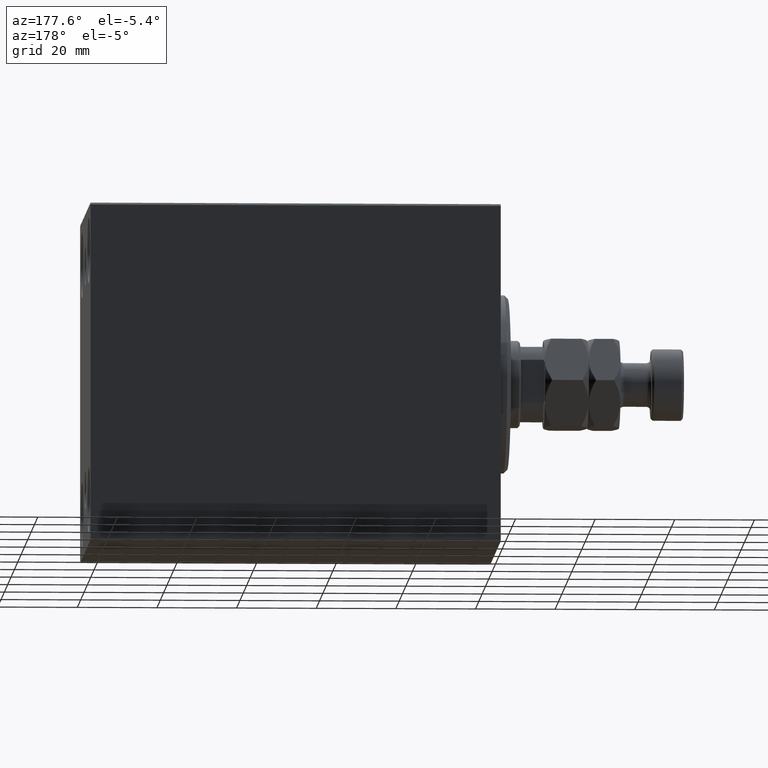
[diagram: clean part render]
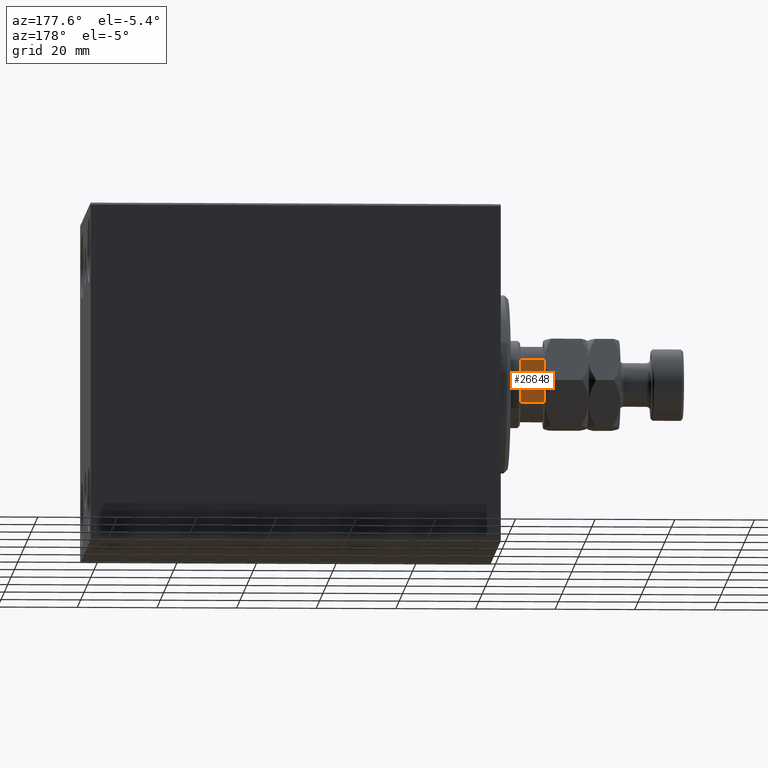
[diagram: same view with one face highlighted and labeled with its STEP entity id]
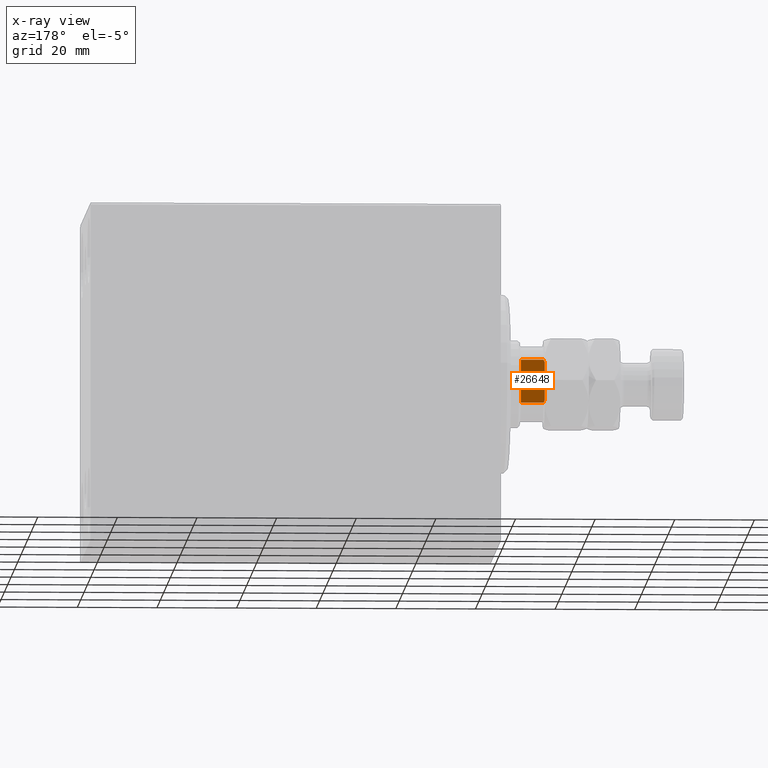
[diagram: x-ray of the same camera — body ghosted, the highlighted face saturated]
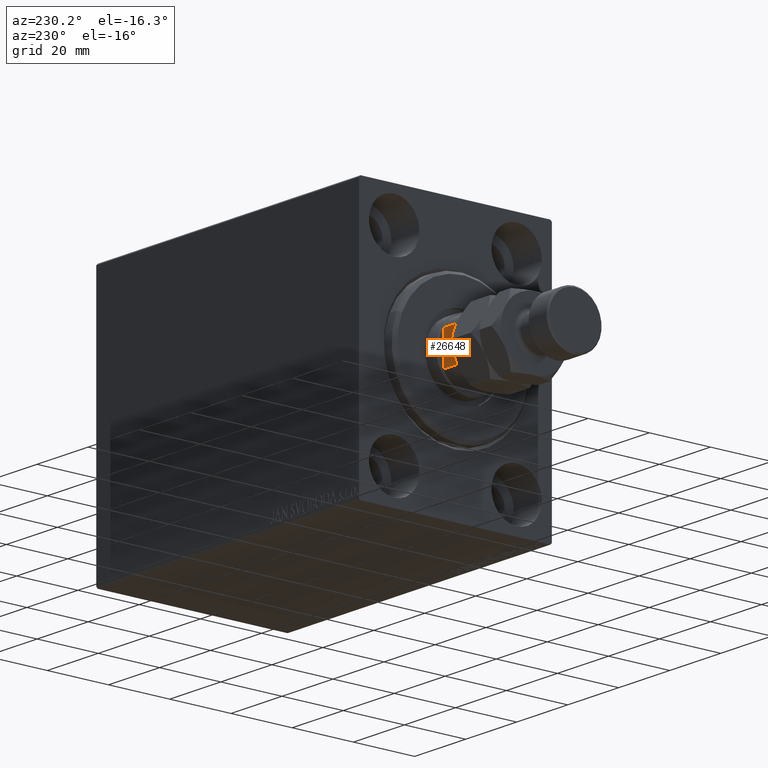
[diagram: same view with one face highlighted and labeled with its STEP entity id]
A machine part, auxiliary view. The second image highlights one B-rep face of the part: STEP entity #26648.
The next image is the same camera in x-ray: the body ghosted, the highlighted face saturated — about 0% of this face is hidden behind the body in this view.
A second angle (auxiliary view) of the same face is appended — the face is thin or edge-on in the first view.
In plain terms, the highlighted planar face has unit normal (0, -1, 0).
Its self-contained STEP definition (entity closure, byte-faithful):
#956 = EDGE_LOOP ( 'NONE', ( #14218, #34635, #30588, #30166, #45015, #34044 ) ) ;
#1369 = LINE ( 'NONE', #13273, #37239 ) ;
#1640 = CARTESIAN_POINT ( 'NONE',  ( 5.408326913195989682, 8.999999999999998224, 102.6999999999999886 ) ) ;
#2187 = VECTOR ( 'NONE', #26177, 1000.000000000000000 ) ;
#3000 = DIRECTION ( 'NONE',  ( -0.000000000000000000, -0.000000000000000000, 1.000000000000000000 ) ) ;
#3223 = LINE ( 'NONE', #34450, #44321 ) ;
#3697 = CARTESIAN_POINT ( 'NONE',  ( -5.004607318780315062, 8.999999999999998224, 102.9037142029269347 ) ) ;
#3930 = VERTEX_POINT ( 'NONE', #24798 ) ;
#5064 = CARTESIAN_POINT ( 'NONE',  ( 5.408326913195989682, 8.999999999999998224, -0.001000000000001000089 ) ) ;
#6027 = DIRECTION ( 'NONE',  ( 0.000000000000000000, -0.000000000000000000, -1.000000000000000000 ) ) ;
#6639 = CARTESIAN_POINT ( 'NONE',  ( -5.408326913195991459, 8.999999999999998224, 97.00000000000004263 ) ) ;
#6977 = VERTEX_POINT ( 'NONE', #24810 ) ;
#8553 = CARTESIAN_POINT ( 'NONE',  ( 5.408326913195989682, 8.999999999999998224, 102.6999999999999886 ) ) ;
#12596 = DIRECTION ( 'NONE',  ( -1.000000000000000000, -0.000000000000000000, -0.000000000000000000 ) ) ;
#13273 = CARTESIAN_POINT ( 'NONE',  ( -9.000000000000001776, 8.999999999999998224, 97.00000000000000000 ) ) ;
#14218 = ORIENTED_EDGE ( 'NONE', *, *, #25500, .F. ) ;
#15856 = VERTEX_POINT ( 'NONE', #33620 ) ;
#17850 = CARTESIAN_POINT ( 'NONE',  ( -5.408326913195988794, 8.999999999999998224, 102.7000000000000171 ) ) ;
#18669 = VECTOR ( 'NONE', #37673, 1000.000000000000000 ) ;
#18675 = EDGE_CURVE ( 'NONE', #15856, #33379, #40402, .T. ) ;
#19319 = B_SPLINE_CURVE_WITH_KNOTS ( 'NONE', 3,
 ( #24889, #38885, #26234, #8553 ),
 .UNSPECIFIED., .F., .F.,
 ( 4, 4 ),
 ( 8.673617379884035472E-19, 0.0006782784334759682683 ),
 .UNSPECIFIED. ) ;
#23485 = PLANE ( 'NONE',  #45070 ) ;
#23677 = CARTESIAN_POINT ( 'NONE',  ( -9.000000000000001776, 8.999999999999998224, 103.0000000000000142 ) ) ;
#23701 = FACE_OUTER_BOUND ( 'NONE', #956, .T. ) ;
#24798 = CARTESIAN_POINT ( 'NONE',  ( 4.799999999999967848, 8.999999999999998224, 103.0000000000000142 ) ) ;
#24810 = CARTESIAN_POINT ( 'NONE',  ( -4.800000000000012257, 8.999999999999998224, 103.0000000000000142 ) ) ;
#24889 = CARTESIAN_POINT ( 'NONE',  ( 4.799999999999967848, 8.999999999999998224, 103.0000000000000142 ) ) ;
#25500 = EDGE_CURVE ( 'NONE', #3930, #6977, #44565, .T. ) ;
#25570 = EDGE_CURVE ( 'NONE', #44087, #6977, #32106, .T. ) ;
#26177 = DIRECTION ( 'NONE',  ( -0.000000000000000000, -0.000000000000000000, 1.000000000000000000 ) ) ;
#26234 = CARTESIAN_POINT ( 'NONE',  ( 5.207299490555463706, 8.999999999999998224, 102.8035449543006763 ) ) ;
#26648 = ADVANCED_FACE ( 'NONE', ( #23701 ), #23485, .F. ) ;
#29604 = EDGE_CURVE ( 'NONE', #40119, #44087, #3223, .T. ) ;
#30166 = ORIENTED_EDGE ( 'NONE', *, *, #43181, .T. ) ;
#30588 = ORIENTED_EDGE ( 'NONE', *, *, #18675, .F. ) ;
#32106 = B_SPLINE_CURVE_WITH_KNOTS ( 'NONE', 3,
 ( #32611, #35148, #3697, #35595 ),
 .UNSPECIFIED., .F., .F.,
 ( 4, 4 ),
 ( 0.000000000000000000, 0.0006782784334759147087 ),
 .UNSPECIFIED. ) ;
#32611 = CARTESIAN_POINT ( 'NONE',  ( -5.408326913195988794, 8.999999999999998224, 102.7000000000000171 ) ) ;
#33379 = VERTEX_POINT ( 'NONE', #1640 ) ;
#33620 = CARTESIAN_POINT ( 'NONE',  ( 5.408326913195989682, 8.999999999999998224, 97.00000000000005684 ) ) ;
#34044 = ORIENTED_EDGE ( 'NONE', *, *, #25570, .T. ) ;
#34450 = CARTESIAN_POINT ( 'NONE',  ( -5.408326913195988794, 8.999999999999998224, -0.001000000000001000089 ) ) ;
#34635 = ORIENTED_EDGE ( 'NONE', *, *, #38362, .T. ) ;
#35148 = CARTESIAN_POINT ( 'NONE',  ( -5.207299490555478805, 8.999999999999998224, 102.8035449543006905 ) ) ;
#35595 = CARTESIAN_POINT ( 'NONE',  ( -4.800000000000012257, 8.999999999999998224, 103.0000000000000142 ) ) ;
#37239 = VECTOR ( 'NONE', #12596, 1000.000000000000000 ) ;
#37673 = DIRECTION ( 'NONE',  ( -1.000000000000000000, -0.000000000000000000, -0.000000000000000000 ) ) ;
#37926 = DIRECTION ( 'NONE',  ( 0.000000000000000000, -1.000000000000000000, 0.000000000000000000 ) ) ;
#38362 = EDGE_CURVE ( 'NONE', #3930, #33379, #19319, .T. ) ;
#38885 = CARTESIAN_POINT ( 'NONE',  ( 5.004607318780281311, 8.999999999999998224, 102.9037142029269205 ) ) ;
#40119 = VERTEX_POINT ( 'NONE', #6639 ) ;
#40402 = LINE ( 'NONE', #5064, #2187 ) ;
#41600 = CARTESIAN_POINT ( 'NONE',  ( -9.000000000000001776, 8.999999999999998224, 103.0000000000000142 ) ) ;
#43181 = EDGE_CURVE ( 'NONE', #15856, #40119, #1369, .T. ) ;
#44087 = VERTEX_POINT ( 'NONE', #17850 ) ;
#44321 = VECTOR ( 'NONE', #3000, 1000.000000000000000 ) ;
#44565 = LINE ( 'NONE', #23677, #18669 ) ;
#45015 = ORIENTED_EDGE ( 'NONE', *, *, #29604, .T. ) ;
#45070 = AXIS2_PLACEMENT_3D ( 'NONE', #41600, #37926, #6027 ) ;